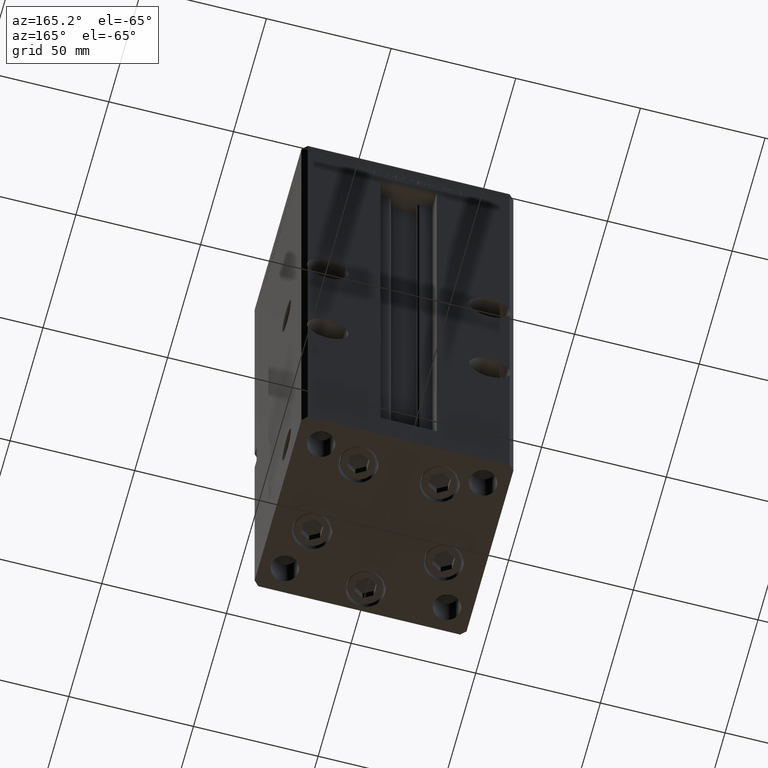
[diagram: clean part render]
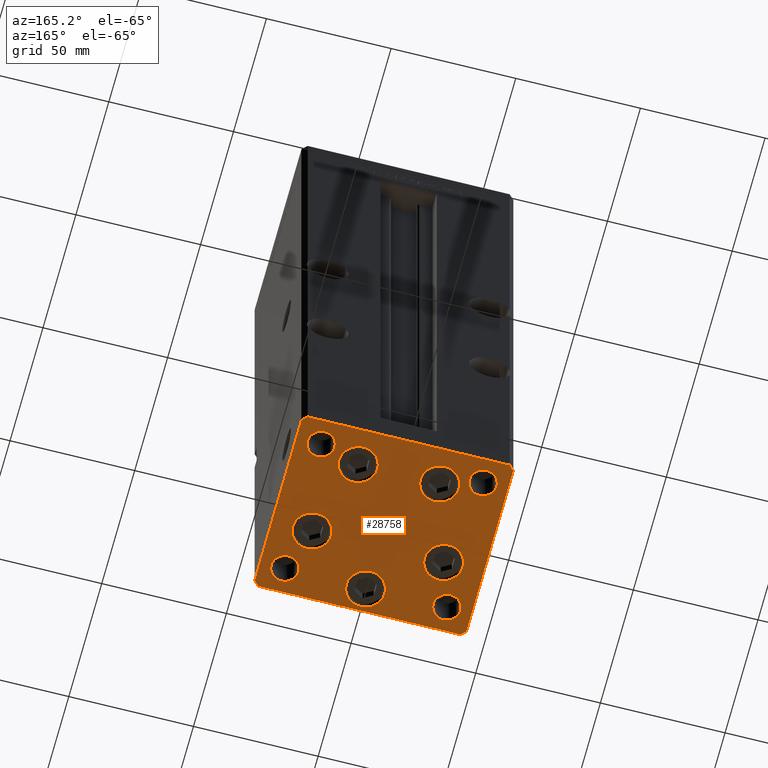
[diagram: same view with one face highlighted and labeled with its STEP entity id]
A machine part, auxiliary view. The second image highlights one B-rep face of the part: STEP entity #28758.
In plain terms, the highlighted planar face has unit normal (0, 0, -1).
Its self-contained STEP definition (entity closure, byte-faithful):
#28 = VERTEX_POINT ( 'NONE', #13844 ) ;
#293 = EDGE_CURVE ( 'NONE', #46652, #29321, #14045, .T. ) ;
#792 = EDGE_CURVE ( 'NONE', #10964, #50512, #5779, .T. ) ;
#880 = DIRECTION ( 'NONE',  ( 1.000000000000000000, 1.713307136767217096E-16, 0.000000000000000000 ) ) ;
#1138 = VECTOR ( 'NONE', #21578, 1000.000000000000000 ) ;
#1191 = CARTESIAN_POINT ( 'NONE',  ( -38.00000000000000000, -27.49999999999999645, 0.000000000000000000 ) ) ;
#1972 = CIRCLE ( 'NONE', #32146, 7.750000000000000000 ) ;
#1981 = EDGE_CURVE ( 'NONE', #46459, #40534, #26082, .T. ) ;
#2146 = FACE_BOUND ( 'NONE', #27270, .T. ) ;
#2710 = EDGE_CURVE ( 'NONE', #13866, #28, #45391, .T. ) ;
#2724 = CARTESIAN_POINT ( 'NONE',  ( -40.50000000000000711, 37.49999999999997868, 0.000000000000000000 ) ) ;
#2979 = CARTESIAN_POINT ( 'NONE',  ( -42.50000000000000000, -35.50000000000000711, 0.000000000000000000 ) ) ;
#3243 = EDGE_CURVE ( 'NONE', #15581, #24726, #25578, .T. ) ;
#3410 = ORIENTED_EDGE ( 'NONE', *, *, #45341, .T. ) ;
#3840 = VERTEX_POINT ( 'NONE', #40385 ) ;
#3865 = VERTEX_POINT ( 'NONE', #31996 ) ;
#3899 = AXIS2_PLACEMENT_3D ( 'NONE', #26866, #26340, #51159 ) ;
#4001 = ORIENTED_EDGE ( 'NONE', *, *, #2710, .F. ) ;
#4036 = EDGE_CURVE ( 'NONE', #27606, #48697, #48018, .T. ) ;
#4042 = VERTEX_POINT ( 'NONE', #2724 ) ;
#4378 = CARTESIAN_POINT ( 'NONE',  ( 8.572913342905422951, 22.75000000000000000, 0.000000000000000000 ) ) ;
#4685 = ORIENTED_EDGE ( 'NONE', *, *, #39330, .T. ) ;
#4938 = DIRECTION ( 'NONE',  ( 0.000000000000000000, -0.000000000000000000, -1.000000000000000000 ) ) ;
#4955 = DIRECTION ( 'NONE',  ( -0.000000000000000000, 0.000000000000000000, 1.000000000000000000 ) ) ;
#5095 = ORIENTED_EDGE ( 'NONE', *, *, #34038, .T. ) ;
#5379 = VERTEX_POINT ( 'NONE', #9623 ) ;
#5380 = FACE_BOUND ( 'NONE', #24031, .T. ) ;
#5779 = CIRCLE ( 'NONE', #42877, 7.750000000000000000 ) ;
#5809 = VERTEX_POINT ( 'NONE', #25779 ) ;
#5842 = ORIENTED_EDGE ( 'NONE', *, *, #1981, .T. ) ;
#6415 = CARTESIAN_POINT ( 'NONE',  ( 26.39865316429776954, -9.333333333333330373, 0.000000000000000000 ) ) ;
#6488 = DIRECTION ( 'NONE',  ( 0.000000000000000000, -0.000000000000000000, -1.000000000000000000 ) ) ;
#6564 = CARTESIAN_POINT ( 'NONE',  ( -26.39865316429776954, -9.333333333333337478, 0.000000000000000000 ) ) ;
#6929 = DIRECTION ( 'NONE',  ( 0.000000000000000000, -0.000000000000000000, -1.000000000000000000 ) ) ;
#7485 = AXIS2_PLACEMENT_3D ( 'NONE', #43491, #6488, #23226 ) ;
#7515 = DIRECTION ( 'NONE',  ( 1.000000000000000000, 0.000000000000000000, 0.000000000000000000 ) ) ;
#7843 = DIRECTION ( 'NONE',  ( 0.000000000000000000, -0.000000000000000000, -1.000000000000000000 ) ) ;
#8088 = CARTESIAN_POINT ( 'NONE',  ( 7.750000000000003553, -28.00000000000000000, 0.000000000000000000 ) ) ;
#8117 = DIRECTION ( 'NONE',  ( 1.000000000000000000, 0.000000000000000000, 0.000000000000000000 ) ) ;
#8810 = CARTESIAN_POINT ( 'NONE',  ( -7.749999999999996447, -28.00000000000000000, 0.000000000000000000 ) ) ;
#9049 = VERTEX_POINT ( 'NONE', #18540 ) ;
#9559 = EDGE_CURVE ( 'NONE', #10737, #31653, #11323, .T. ) ;
#9623 = CARTESIAN_POINT ( 'NONE',  ( -42.50000000000000711, 35.49999999999997158, 0.000000000000000000 ) ) ;
#9782 = VERTEX_POINT ( 'NONE', #19496 ) ;
#9852 = CARTESIAN_POINT ( 'NONE',  ( 3.429011037612589276E-15, -28.00000000000000000, 0.000000000000000000 ) ) ;
#10066 = AXIS2_PLACEMENT_3D ( 'NONE', #45538, #48799, #37197 ) ;
#10149 = VECTOR ( 'NONE', #50655, 1000.000000000000114 ) ;
#10227 = CARTESIAN_POINT ( 'NONE',  ( 0.000000000000000000, 0.000000000000000000, 0.000000000000000000 ) ) ;
#10728 = DIRECTION ( 'NONE',  ( 0.000000000000000000, -0.000000000000000000, -1.000000000000000000 ) ) ;
#10737 = VERTEX_POINT ( 'NONE', #8088 ) ;
#10811 = CIRCLE ( 'NONE', #27200, 7.750000000000000000 ) ;
#10964 = VERTEX_POINT ( 'NONE', #30145 ) ;
#11276 = CIRCLE ( 'NONE', #45766, 5.499999999999998224 ) ;
#11323 = CIRCLE ( 'NONE', #38940, 7.750000000000000000 ) ;
#11586 = CARTESIAN_POINT ( 'NONE',  ( -16.32291334290543006, 22.74999999999999645, 0.000000000000000000 ) ) ;
#11832 = VECTOR ( 'NONE', #31857, 1000.000000000000000 ) ;
#12347 = CIRCLE ( 'NONE', #19256, 7.750000000000000000 ) ;
#12403 = LINE ( 'NONE', #41574, #1138 ) ;
#12988 = CARTESIAN_POINT ( 'NONE',  ( -40.49999999999999289, -37.50000000000002132, 0.000000000000000000 ) ) ;
#13182 = DIRECTION ( 'NONE',  ( 0.000000000000000000, -0.000000000000000000, -1.000000000000000000 ) ) ;
#13480 = FACE_BOUND ( 'NONE', #16660, .T. ) ;
#13844 = CARTESIAN_POINT ( 'NONE',  ( -38.00000000000000000, 27.50000000000000355, 0.000000000000000000 ) ) ;
#13866 = VERTEX_POINT ( 'NONE', #40206 ) ;
#13882 = EDGE_CURVE ( 'NONE', #3865, #51570, #11276, .T. ) ;
#14045 = LINE ( 'NONE', #2979, #11832 ) ;
#14204 = AXIS2_PLACEMENT_3D ( 'NONE', #25455, #4938, #21394 ) ;
#14547 = AXIS2_PLACEMENT_3D ( 'NONE', #52265, #23384, #31775 ) ;
#14593 = ORIENTED_EDGE ( 'NONE', *, *, #293, .T. ) ;
#14605 = ORIENTED_EDGE ( 'NONE', *, *, #48327, .T. ) ;
#15533 = EDGE_CURVE ( 'NONE', #50512, #10964, #21694, .T. ) ;
#15581 = VERTEX_POINT ( 'NONE', #23147 ) ;
#15931 = ORIENTED_EDGE ( 'NONE', *, *, #13882, .T. ) ;
#16109 = ORIENTED_EDGE ( 'NONE', *, *, #22684, .T. ) ;
#16660 = EDGE_LOOP ( 'NONE', ( #41727, #22162 ) ) ;
#17488 = CIRCLE ( 'NONE', #34814, 5.499999999999998224 ) ;
#17503 = EDGE_CURVE ( 'NONE', #48697, #27606, #37321, .T. ) ;
#17590 = VECTOR ( 'NONE', #35355, 1000.000000000000000 ) ;
#17793 = DIRECTION ( 'NONE',  ( -0.000000000000000000, 0.000000000000000000, 1.000000000000000000 ) ) ;
#17801 = AXIS2_PLACEMENT_3D ( 'NONE', #6564, #48138, #18448 ) ;
#18051 = FACE_BOUND ( 'NONE', #37194, .T. ) ;
#18207 = DIRECTION ( 'NONE',  ( 0.000000000000000000, -0.000000000000000000, -1.000000000000000000 ) ) ;
#18414 = LINE ( 'NONE', #48359, #26432 ) ;
#18448 = DIRECTION ( 'NONE',  ( 1.000000000000000000, 0.000000000000000000, 0.000000000000000000 ) ) ;
#18540 = CARTESIAN_POINT ( 'NONE',  ( -8.572913342905431833, 22.74999999999999645, 0.000000000000000000 ) ) ;
#19256 = AXIS2_PLACEMENT_3D ( 'NONE', #20115, #48994, #24432 ) ;
#19290 = CARTESIAN_POINT ( 'NONE',  ( -34.14865316429776954, -9.333333333333337478, 0.000000000000000000 ) ) ;
#19356 = ORIENTED_EDGE ( 'NONE', *, *, #17503, .T. ) ;
#19496 = CARTESIAN_POINT ( 'NONE',  ( 38.00000000000000000, 27.49999999999999645, 0.000000000000000000 ) ) ;
#19667 = CARTESIAN_POINT ( 'NONE',  ( 32.50000000000000000, -27.49999999999999645, 0.000000000000000000 ) ) ;
#19802 = EDGE_CURVE ( 'NONE', #51570, #3865, #17488, .T. ) ;
#20115 = CARTESIAN_POINT ( 'NONE',  ( -16.32291334290543006, 22.74999999999999645, 0.000000000000000000 ) ) ;
#20139 = VERTEX_POINT ( 'NONE', #1191 ) ;
#20801 = DIRECTION ( 'NONE',  ( -1.172770800660376741E-15, 1.000000000000000000, 0.000000000000000000 ) ) ;
#21152 = DIRECTION ( 'NONE',  ( -0.000000000000000000, 0.000000000000000000, 1.000000000000000000 ) ) ;
#21254 = AXIS2_PLACEMENT_3D ( 'NONE', #41949, #4955, #34635 ) ;
#21394 = DIRECTION ( 'NONE',  ( 1.000000000000000000, 0.000000000000000000, 0.000000000000000000 ) ) ;
#21455 = CIRCLE ( 'NONE', #14547, 5.499999999999998224 ) ;
#21578 = DIRECTION ( 'NONE',  ( -0.7071067811865463515, -0.7071067811865487940, 0.000000000000000000 ) ) ;
#21694 = CIRCLE ( 'NONE', #43239, 7.750000000000000000 ) ;
#21816 = DIRECTION ( 'NONE',  ( 1.000000000000000000, 0.000000000000000000, 0.000000000000000000 ) ) ;
#21920 = AXIS2_PLACEMENT_3D ( 'NONE', #53191, #7843, #8117 ) ;
#22162 = ORIENTED_EDGE ( 'NONE', *, *, #15533, .T. ) ;
#22375 = FACE_BOUND ( 'NONE', #39599, .T. ) ;
#22643 = LINE ( 'NONE', #43710, #17590 ) ;
#22684 = EDGE_CURVE ( 'NONE', #24726, #15581, #31414, .T. ) ;
#22813 = LINE ( 'NONE', #39308, #48969 ) ;
#22863 = DIRECTION ( 'NONE',  ( 0.000000000000000000, -0.000000000000000000, -1.000000000000000000 ) ) ;
#23147 = CARTESIAN_POINT ( 'NONE',  ( -18.64865316429776954, -9.333333333333335702, 0.000000000000000000 ) ) ;
#23226 = DIRECTION ( 'NONE',  ( 1.000000000000000000, 0.000000000000000000, 0.000000000000000000 ) ) ;
#23384 = DIRECTION ( 'NONE',  ( 0.000000000000000000, -0.000000000000000000, -1.000000000000000000 ) ) ;
#23850 = VECTOR ( 'NONE', #20801, 1000.000000000000000 ) ;
#24031 = EDGE_LOOP ( 'NONE', ( #15931, #36797 ) ) ;
#24330 = EDGE_CURVE ( 'NONE', #28, #13866, #43512, .T. ) ;
#24415 = ORIENTED_EDGE ( 'NONE', *, *, #9559, .T. ) ;
#24432 = DIRECTION ( 'NONE',  ( 1.000000000000000000, 0.000000000000000000, 0.000000000000000000 ) ) ;
#24726 = VERTEX_POINT ( 'NONE', #19290 ) ;
#25375 = EDGE_CURVE ( 'NONE', #35772, #9782, #30633, .T. ) ;
#25455 = CARTESIAN_POINT ( 'NONE',  ( -32.50000000000000000, -27.49999999999999645, 0.000000000000000000 ) ) ;
#25578 = CIRCLE ( 'NONE', #17801, 7.750000000000000000 ) ;
#25779 = CARTESIAN_POINT ( 'NONE',  ( 40.50000000000000000, -37.50000000000000711, 0.000000000000000000 ) ) ;
#25910 = CARTESIAN_POINT ( 'NONE',  ( 27.00000000000000355, -27.49999999999999645, 0.000000000000000000 ) ) ;
#26042 = ORIENTED_EDGE ( 'NONE', *, *, #30116, .T. ) ;
#26082 = LINE ( 'NONE', #45789, #10149 ) ;
#26340 = DIRECTION ( 'NONE',  ( -0.000000000000000000, 0.000000000000000000, 1.000000000000000000 ) ) ;
#26406 = CARTESIAN_POINT ( 'NONE',  ( 26.39865316429776954, -9.333333333333330373, 0.000000000000000000 ) ) ;
#26432 = VECTOR ( 'NONE', #38954, 1000.000000000000114 ) ;
#26866 = CARTESIAN_POINT ( 'NONE',  ( 32.50000000000000000, 27.49999999999999645, 0.000000000000000000 ) ) ;
#26917 = DIRECTION ( 'NONE',  ( 1.000000000000000000, 0.000000000000000000, 0.000000000000000000 ) ) ;
#27200 = AXIS2_PLACEMENT_3D ( 'NONE', #11586, #28329, #28061 ) ;
#27270 = EDGE_LOOP ( 'NONE', ( #34589, #4685 ) ) ;
#27606 = VERTEX_POINT ( 'NONE', #4378 ) ;
#27988 = DIRECTION ( 'NONE',  ( 1.000000000000000000, 0.000000000000000000, 0.000000000000000000 ) ) ;
#28061 = DIRECTION ( 'NONE',  ( 1.000000000000000000, 0.000000000000000000, 0.000000000000000000 ) ) ;
#28078 = EDGE_LOOP ( 'NONE', ( #46241, #24415 ) ) ;
#28329 = DIRECTION ( 'NONE',  ( 0.000000000000000000, -0.000000000000000000, -1.000000000000000000 ) ) ;
#28758 = ADVANCED_FACE ( 'NONE', ( #42379, #50470, #13480, #42905, #38609, #18051, #5380, #22375, #38341, #2146 ), #38864, .T. ) ;
#29321 = VERTEX_POINT ( 'NONE', #34889 ) ;
#29463 = EDGE_LOOP ( 'NONE', ( #48903, #19356 ) ) ;
#29466 = LINE ( 'NONE', #12988, #46797 ) ;
#30116 = EDGE_CURVE ( 'NONE', #5809, #46691, #18414, .T. ) ;
#30145 = CARTESIAN_POINT ( 'NONE',  ( 18.64865316429776954, -9.333333333333330373, 0.000000000000000000 ) ) ;
#30279 = ORIENTED_EDGE ( 'NONE', *, *, #25375, .F. ) ;
#30362 = EDGE_CURVE ( 'NONE', #9049, #32951, #10811, .T. ) ;
#30633 = CIRCLE ( 'NONE', #3899, 5.499999999999998224 ) ;
#31193 = ORIENTED_EDGE ( 'NONE', *, *, #46332, .T. ) ;
#31220 = CARTESIAN_POINT ( 'NONE',  ( 40.49999999999991473, 37.50000000000000711, 0.000000000000000000 ) ) ;
#31258 = DIRECTION ( 'NONE',  ( 1.000000000000000000, 0.000000000000000000, 0.000000000000000000 ) ) ;
#31414 = CIRCLE ( 'NONE', #21920, 7.750000000000000000 ) ;
#31441 = ORIENTED_EDGE ( 'NONE', *, *, #33924, .F. ) ;
#31564 = AXIS2_PLACEMENT_3D ( 'NONE', #10227, #17793, #34291 ) ;
#31653 = VERTEX_POINT ( 'NONE', #8810 ) ;
#31775 = DIRECTION ( 'NONE',  ( 1.000000000000000000, 0.000000000000000000, 0.000000000000000000 ) ) ;
#31857 = DIRECTION ( 'NONE',  ( 0.7071067811865463515, -0.7071067811865487940, 0.000000000000000000 ) ) ;
#31996 = CARTESIAN_POINT ( 'NONE',  ( 38.00000000000000000, -27.49999999999999645, 0.000000000000000000 ) ) ;
#32146 = AXIS2_PLACEMENT_3D ( 'NONE', #9852, #18207, #34706 ) ;
#32319 = EDGE_LOOP ( 'NONE', ( #14593, #3410, #26042, #5095, #5842, #43773, #14605, #45898 ) ) ;
#32951 = VERTEX_POINT ( 'NONE', #51122 ) ;
#33924 = EDGE_CURVE ( 'NONE', #9782, #35772, #44542, .T. ) ;
#34038 = EDGE_CURVE ( 'NONE', #46691, #46459, #41353, .T. ) ;
#34291 = DIRECTION ( 'NONE',  ( 1.000000000000000000, 0.000000000000000000, 0.000000000000000000 ) ) ;
#34331 = EDGE_LOOP ( 'NONE', ( #16109, #50305 ) ) ;
#34568 = CARTESIAN_POINT ( 'NONE',  ( 27.00000000000000355, 27.49999999999999645, 0.000000000000000000 ) ) ;
#34589 = ORIENTED_EDGE ( 'NONE', *, *, #53005, .T. ) ;
#34635 = DIRECTION ( 'NONE',  ( 1.000000000000000000, 0.000000000000000000, 0.000000000000000000 ) ) ;
#34706 = DIRECTION ( 'NONE',  ( 1.000000000000000000, 0.000000000000000000, 0.000000000000000000 ) ) ;
#34814 = AXIS2_PLACEMENT_3D ( 'NONE', #40155, #44451, #49029 ) ;
#34889 = CARTESIAN_POINT ( 'NONE',  ( -40.49999999999999289, -37.50000000000002132, 0.000000000000000000 ) ) ;
#35198 = ORIENTED_EDGE ( 'NONE', *, *, #30362, .T. ) ;
#35355 = DIRECTION ( 'NONE',  ( 9.773090005503140331E-17, -1.000000000000000000, 0.000000000000000000 ) ) ;
#35480 = CARTESIAN_POINT ( 'NONE',  ( 24.07291334290542650, 22.75000000000000000, 0.000000000000000000 ) ) ;
#35772 = VERTEX_POINT ( 'NONE', #34568 ) ;
#36149 = DIRECTION ( 'NONE',  ( 0.000000000000000000, -0.000000000000000000, -1.000000000000000000 ) ) ;
#36797 = ORIENTED_EDGE ( 'NONE', *, *, #19802, .T. ) ;
#37194 = EDGE_LOOP ( 'NONE', ( #31441, #30279 ) ) ;
#37197 = DIRECTION ( 'NONE',  ( 1.000000000000000000, 0.000000000000000000, 0.000000000000000000 ) ) ;
#37292 = CARTESIAN_POINT ( 'NONE',  ( 42.50000000000000711, -35.50000000000000000, 0.000000000000000000 ) ) ;
#37321 = CIRCLE ( 'NONE', #43313, 7.750000000000003553 ) ;
#37374 = DIRECTION ( 'NONE',  ( 1.000000000000000000, 0.000000000000000000, 0.000000000000000000 ) ) ;
#37447 = EDGE_CURVE ( 'NONE', #40534, #4042, #22813, .T. ) ;
#37502 = CIRCLE ( 'NONE', #14204, 5.499999999999998224 ) ;
#38329 = ORIENTED_EDGE ( 'NONE', *, *, #24330, .F. ) ;
#38341 = FACE_OUTER_BOUND ( 'NONE', #32319, .T. ) ;
#38609 = FACE_BOUND ( 'NONE', #34331, .T. ) ;
#38864 = PLANE ( 'NONE',  #31564 ) ;
#38940 = AXIS2_PLACEMENT_3D ( 'NONE', #43934, #6929, #27988 ) ;
#38954 = DIRECTION ( 'NONE',  ( 0.7071067811865474617, 0.7071067811865474617, 0.000000000000000000 ) ) ;
#39308 = CARTESIAN_POINT ( 'NONE',  ( 40.49999999999991473, 37.50000000000000711, 0.000000000000000000 ) ) ;
#39330 = EDGE_CURVE ( 'NONE', #20139, #3840, #21455, .T. ) ;
#39599 = EDGE_LOOP ( 'NONE', ( #4001, #38329 ) ) ;
#40155 = CARTESIAN_POINT ( 'NONE',  ( 32.50000000000000000, -27.49999999999999645, 0.000000000000000000 ) ) ;
#40206 = CARTESIAN_POINT ( 'NONE',  ( -27.00000000000000355, 27.50000000000000355, 0.000000000000000000 ) ) ;
#40385 = CARTESIAN_POINT ( 'NONE',  ( -27.00000000000000355, -27.49999999999999645, 0.000000000000000000 ) ) ;
#40534 = VERTEX_POINT ( 'NONE', #31220 ) ;
#41353 = LINE ( 'NONE', #37292, #23850 ) ;
#41574 = CARTESIAN_POINT ( 'NONE',  ( -40.50000000000000711, 37.49999999999997868, 0.000000000000000000 ) ) ;
#41689 = CARTESIAN_POINT ( 'NONE',  ( -32.50000000000000000, 27.50000000000000355, 0.000000000000000000 ) ) ;
#41727 = ORIENTED_EDGE ( 'NONE', *, *, #792, .T. ) ;
#41949 = CARTESIAN_POINT ( 'NONE',  ( 32.50000000000000000, 27.49999999999999645, 0.000000000000000000 ) ) ;
#42379 = FACE_BOUND ( 'NONE', #52305, .T. ) ;
#42877 = AXIS2_PLACEMENT_3D ( 'NONE', #26406, #13182, #21816 ) ;
#42905 = FACE_BOUND ( 'NONE', #28078, .T. ) ;
#43239 = AXIS2_PLACEMENT_3D ( 'NONE', #6415, #10728, #31258 ) ;
#43313 = AXIS2_PLACEMENT_3D ( 'NONE', #52003, #22863, #26917 ) ;
#43491 = CARTESIAN_POINT ( 'NONE',  ( 16.32291334290542295, 22.75000000000000000, 0.000000000000000000 ) ) ;
#43512 = CIRCLE ( 'NONE', #49549, 5.499999999999998224 ) ;
#43710 = CARTESIAN_POINT ( 'NONE',  ( -42.50000000000000711, 35.49999999999997158, 0.000000000000000000 ) ) ;
#43773 = ORIENTED_EDGE ( 'NONE', *, *, #37447, .T. ) ;
#43934 = CARTESIAN_POINT ( 'NONE',  ( 3.429011037612589276E-15, -28.00000000000000000, 0.000000000000000000 ) ) ;
#44016 = EDGE_CURVE ( 'NONE', #31653, #10737, #1972, .T. ) ;
#44451 = DIRECTION ( 'NONE',  ( 0.000000000000000000, -0.000000000000000000, -1.000000000000000000 ) ) ;
#44542 = CIRCLE ( 'NONE', #21254, 5.499999999999998224 ) ;
#45341 = EDGE_CURVE ( 'NONE', #29321, #5809, #29466, .T. ) ;
#45391 = CIRCLE ( 'NONE', #10066, 5.499999999999998224 ) ;
#45538 = CARTESIAN_POINT ( 'NONE',  ( -32.50000000000000000, 27.50000000000000355, 0.000000000000000000 ) ) ;
#45766 = AXIS2_PLACEMENT_3D ( 'NONE', #19667, #36149, #7515 ) ;
#45789 = CARTESIAN_POINT ( 'NONE',  ( 42.49999999999992895, 35.50000000000000000, 0.000000000000000000 ) ) ;
#45898 = ORIENTED_EDGE ( 'NONE', *, *, #52490, .T. ) ;
#46060 = CARTESIAN_POINT ( 'NONE',  ( -42.50000000000000000, -35.50000000000000711, 0.000000000000000000 ) ) ;
#46241 = ORIENTED_EDGE ( 'NONE', *, *, #44016, .T. ) ;
#46332 = EDGE_CURVE ( 'NONE', #32951, #9049, #12347, .T. ) ;
#46459 = VERTEX_POINT ( 'NONE', #47825 ) ;
#46652 = VERTEX_POINT ( 'NONE', #46060 ) ;
#46691 = VERTEX_POINT ( 'NONE', #49853 ) ;
#46797 = VECTOR ( 'NONE', #880, 1000.000000000000000 ) ;
#47825 = CARTESIAN_POINT ( 'NONE',  ( 42.49999999999992895, 35.50000000000000000, 0.000000000000000000 ) ) ;
#48018 = CIRCLE ( 'NONE', #7485, 7.750000000000003553 ) ;
#48138 = DIRECTION ( 'NONE',  ( 0.000000000000000000, -0.000000000000000000, -1.000000000000000000 ) ) ;
#48327 = EDGE_CURVE ( 'NONE', #4042, #5379, #12403, .T. ) ;
#48359 = CARTESIAN_POINT ( 'NONE',  ( 40.50000000000000000, -37.50000000000000711, 0.000000000000000000 ) ) ;
#48697 = VERTEX_POINT ( 'NONE', #35480 ) ;
#48799 = DIRECTION ( 'NONE',  ( -0.000000000000000000, 0.000000000000000000, 1.000000000000000000 ) ) ;
#48903 = ORIENTED_EDGE ( 'NONE', *, *, #4036, .T. ) ;
#48969 = VECTOR ( 'NONE', #51686, 1000.000000000000000 ) ;
#48994 = DIRECTION ( 'NONE',  ( 0.000000000000000000, -0.000000000000000000, -1.000000000000000000 ) ) ;
#49029 = DIRECTION ( 'NONE',  ( 1.000000000000000000, 0.000000000000000000, 0.000000000000000000 ) ) ;
#49549 = AXIS2_PLACEMENT_3D ( 'NONE', #41689, #21152, #37374 ) ;
#49853 = CARTESIAN_POINT ( 'NONE',  ( 42.50000000000000711, -35.50000000000000000, 0.000000000000000000 ) ) ;
#50305 = ORIENTED_EDGE ( 'NONE', *, *, #3243, .T. ) ;
#50470 = FACE_BOUND ( 'NONE', #29463, .T. ) ;
#50512 = VERTEX_POINT ( 'NONE', #52112 ) ;
#50655 = DIRECTION ( 'NONE',  ( -0.7071067811865474617, 0.7071067811865474617, 0.000000000000000000 ) ) ;
#51122 = CARTESIAN_POINT ( 'NONE',  ( -24.07291334290543006, 22.74999999999999645, 0.000000000000000000 ) ) ;
#51159 = DIRECTION ( 'NONE',  ( 1.000000000000000000, 0.000000000000000000, 0.000000000000000000 ) ) ;
#51570 = VERTEX_POINT ( 'NONE', #25910 ) ;
#51686 = DIRECTION ( 'NONE',  ( -1.000000000000000000, -3.426614273534436165E-16, 0.000000000000000000 ) ) ;
#52003 = CARTESIAN_POINT ( 'NONE',  ( 16.32291334290542295, 22.75000000000000000, 0.000000000000000000 ) ) ;
#52112 = CARTESIAN_POINT ( 'NONE',  ( 34.14865316429776954, -9.333333333333328596, 0.000000000000000000 ) ) ;
#52265 = CARTESIAN_POINT ( 'NONE',  ( -32.50000000000000000, -27.49999999999999645, 0.000000000000000000 ) ) ;
#52305 = EDGE_LOOP ( 'NONE', ( #31193, #35198 ) ) ;
#52490 = EDGE_CURVE ( 'NONE', #5379, #46652, #22643, .T. ) ;
#53005 = EDGE_CURVE ( 'NONE', #3840, #20139, #37502, .T. ) ;
#53191 = CARTESIAN_POINT ( 'NONE',  ( -26.39865316429776954, -9.333333333333337478, 0.000000000000000000 ) ) ;